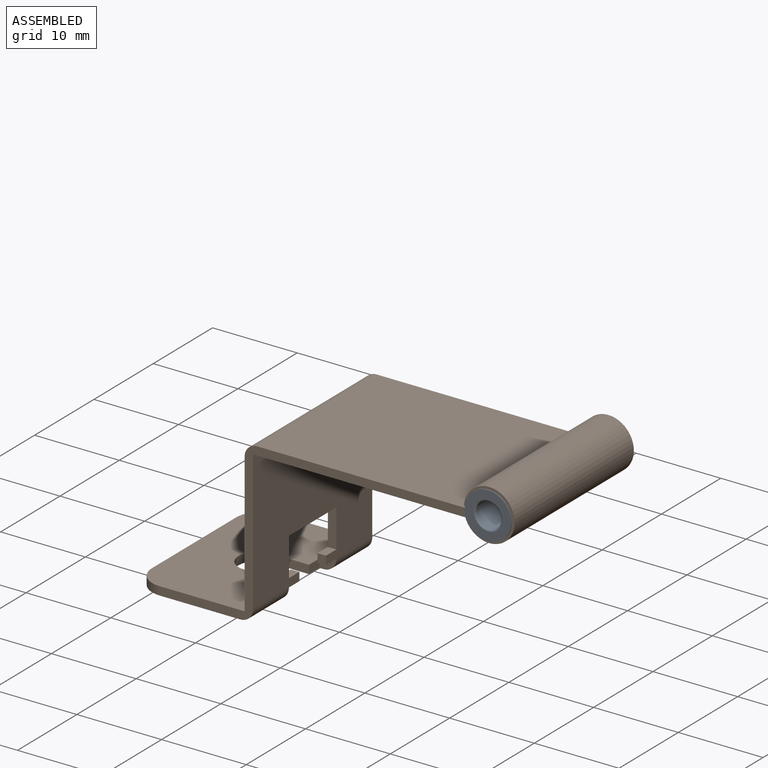
[diagram: assembled view]
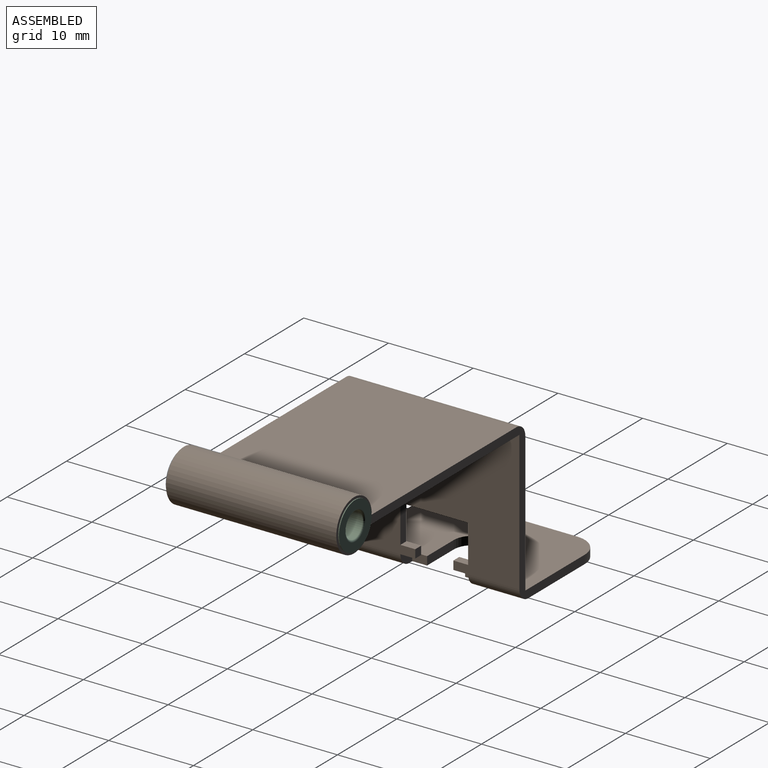
[diagram: assembled view, second angle]
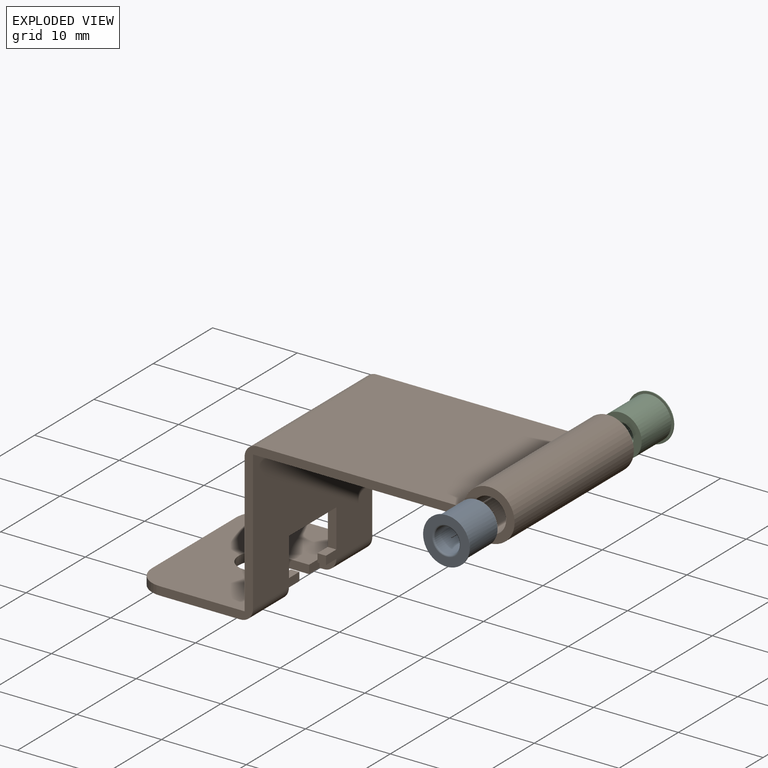
[diagram: exploded view]
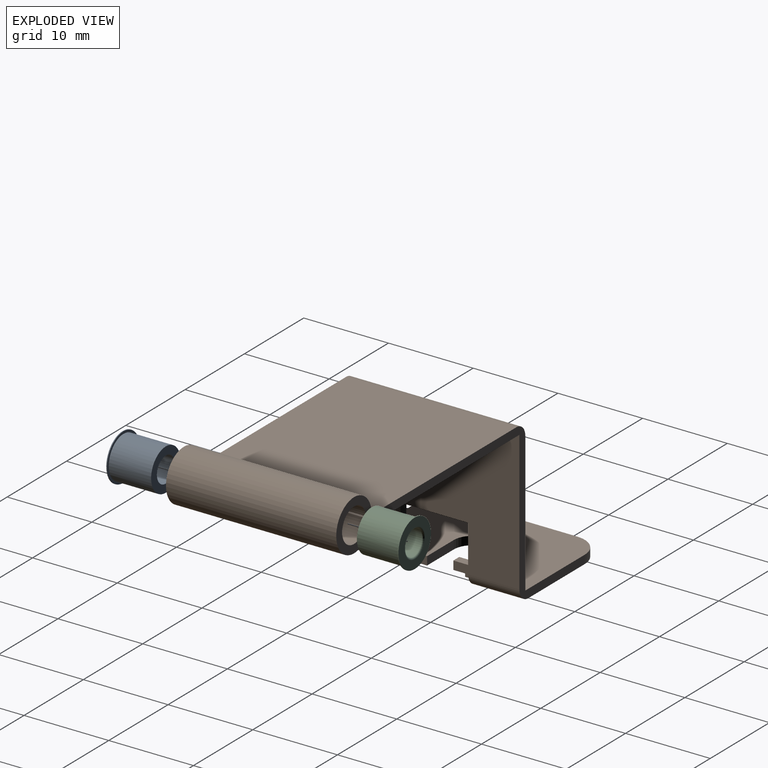
[diagram: exploded view, second angle]
ASSEMBLY  parts=3 mates=2
PART A: 7 faces, bbox 5.5x5.1x5.5 mm
  f0: cylinder r=2.75mm len=5.5mm, axis (0,-1,0), area 1.7mm2, adj f1,f2
  f1: plane 5.5x5.5mm, normal (0,-1,0), area 4.5mm2, adj f0,f3
  f2: plane 5.5x5.5mm, normal (0,1,0), area 14.7mm2, adj f0,f6
  f3: cylinder r=2.48mm len=5mm, axis (0,-1,0), area 77.8mm2, adj f1,f4
  f4: plane 4.95x4.95mm, normal (0,-1,0), area 12.2mm2, adj f3,f5
  f5: cylinder r=1.5mm len=4.9mm, axis (0,-1,0), area 46.2mm2, adj f4,f6
  f6: torus R=1.7mm, axis (0,-1,0), area 3.1mm2, adj f2,f5
PART B: 34 faces, bbox 44.9x20.1x22 mm
  f0: plane 20.1x0.16mm, normal (1,0,0), area 3.1mm2, adj f9,f12,f13,f31
  f1: plane 20.1x16.5mm, normal (-1,0,0), area 287.2mm2, adj f4,f5,f6,f12,f13,f14,f17,f18
  f2: cylinder r=1.5mm len=6.05mm, axis (0,-1,0), area 14.3mm2, adj f3,f7,f13,f23
  f3: plane 20.1x12.5mm, normal (0,0,-1), area 215.2mm2, adj f2,f8,f11,f12,f13,f15,f16,f23
  f4: plane 20.1x13mm, normal (0,0,1), area 221.2mm2, adj f1,f11,f12,f13,f15,f16,f23,f24
  f5: plane 1x1mm, normal (0,-1,0), area 1mm2, adj f1,f7,f21,f22
  f6: plane 1x1mm, normal (0,1,0), area 1mm2, adj f1,f7,f17,f30
  f7: plane 20.1x16.5mm, normal (1,0,0), area 291.2mm2, adj f2,f5,f6,f8,f9,f12,f13,f17
  f8: cylinder r=1.5mm len=6.05mm, axis (0,-1,0), area 14.3mm2, adj f3,f7,f12,f24
  f9: plane 25x20.1mm, normal (0,0,-1), area 502.5mm2, adj f0,f7,f12,f13
  f10: plane 25.38x20.1mm, normal (0,0,1), area 510.1mm2, adj f12,f13,f14,f33
  f11: plane 14.1x1mm, normal (-1,0,0), area 14.1mm2, adj f3,f4,f15,f16
  f12: plane 41.88x22mm, normal (0,-1,0), area 68.5mm2, adj f0,f1,f3,f4,f7,f8,f9,f10
  f13: plane 41.88x22mm, normal (0,1,0), area 68.5mm2, adj f0,f1,f2,f3,f4,f7,f9,f10
  f14: cylinder r=1.5mm len=20.1mm, axis (0,1,0), area 47.4mm2, adj f1,f10,f12,f13
  f15: cylinder r=3mm len=3mm, axis (0,0,1), area 4.7mm2, adj f3,f4,f11,f13
  f16: cylinder r=3mm len=3mm, axis (0,0,-1), area 4.7mm2, adj f3,f4,f11,f12
  f17: plane 1.75x1mm, normal (0,0,1), area 1.8mm2, adj f1,f6,f7,f18
  f18: plane 4.5x1mm, normal (0,1,0), area 4.5mm2, adj f1,f7,f17,f19
  f19: plane 8x1mm, normal (0,0,-1), area 8mm2, adj f1,f7,f18,f20
  f20: plane 4.5x1mm, normal (0,-1,0), area 4.5mm2, adj f1,f7,f19,f21
  f21: plane 1.75x1mm, normal (0,0,1), area 1.8mm2, adj f1,f5,f7,f20
  f22: plane 1.75x1mm, normal (0,0,-1), area 1.8mm2, adj f1,f5,f7,f23
  f23: plane 2x1.5mm, normal (0,-1,0), area 2mm2, adj f1,f2,f3,f4,f22,f29
  f24: plane 2x1.5mm, normal (0,1,0), area 2mm2, adj f1,f3,f4,f8,f25,f30
  f25: plane 1.75x1mm, normal (1,0,0), area 1.8mm2, adj f3,f4,f24,f26
  f26: plane 4.5x1mm, normal (0,1,0), area 4.5mm2, adj f3,f4,f25,f27
  f27: cylinder r=2.25mm len=4.5mm, axis (0,0,-1), area 7.1mm2, adj f3,f4,f26,f28
  f28: plane 4.5x1mm, normal (0,-1,0), area 4.5mm2, adj f3,f4,f27,f29
  f29: plane 1.75x1mm, normal (1,0,0), area 1.8mm2, adj f3,f4,f23,f28
  f30: plane 1.75x1mm, normal (0,0,-1), area 1.7mm2, adj f1,f6,f7,f24
  f31: cylinder r=3mm len=20.1mm, axis (0,-1,0), area 357.7mm2, adj f0,f12,f13,f32
  f32: plane 20.1x1mm, normal (0,0,-1), area 20.2mm2, adj f12,f13,f31,f33
  f33: cylinder r=2mm len=20.1mm, axis (0,-1,0), area 248.6mm2, adj f10,f12,f13,f32
PART C: same geometry as A
PLACE A rot(axis=(1,0,0),180deg) t=(30.86,-24.74,-6.08)mm
PLACE B t=(-5.18,-4.44,-6.08)mm
PLACE C t=(30.86,-4.29,-6.08)mm
MATE fastened A.f0 <-> B.f31  axis (0,-1,0) through (30.86,-24.74,-6.08)mm
MATE fastened C.f0 <-> B.f31  axis (0,-1,0) through (30.86,-4.39,-6.08)mm
